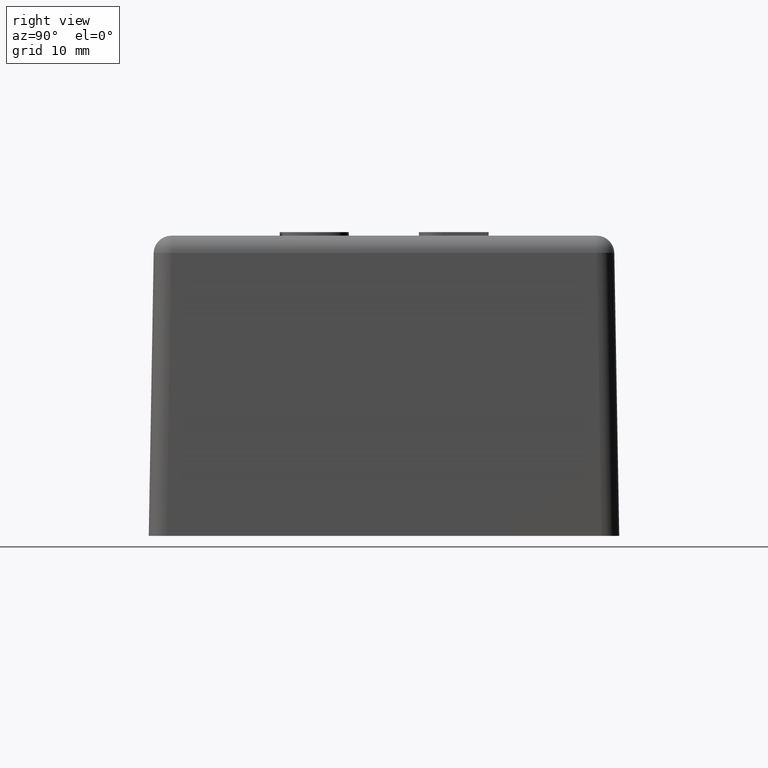
[diagram: clean part render]
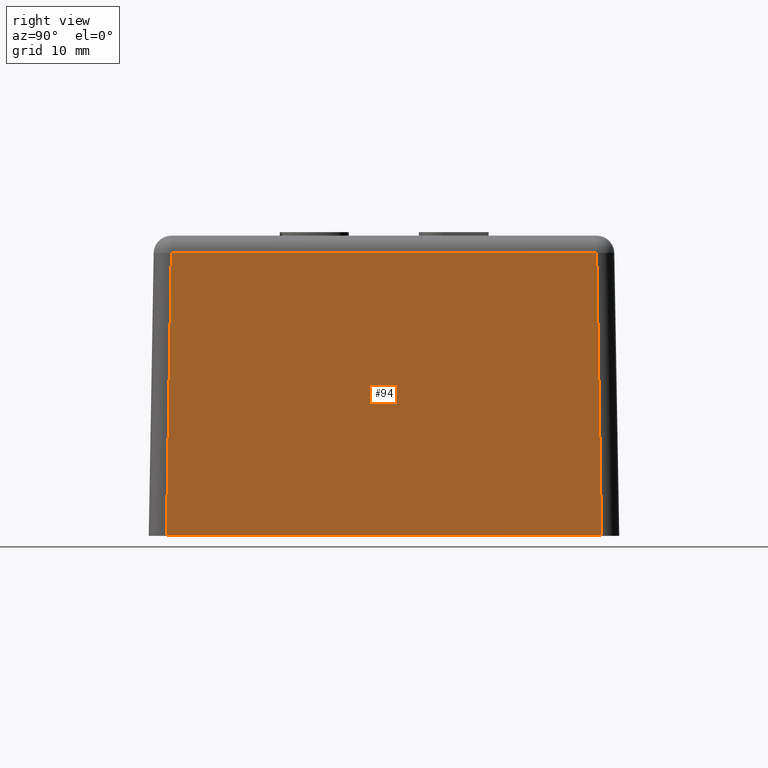
[diagram: same view with one face highlighted and labeled with its STEP entity id]
A machine part, right view. The second image highlights one B-rep face of the part: STEP entity #94.
In plain terms, the highlighted planar face has unit normal (0.9998, 0, 0.0175).
Its self-contained STEP definition (entity closure, byte-faithful):
#94 = ADVANCED_FACE( '', ( #203 ), #204, .T. );
#203 = FACE_OUTER_BOUND( '', #377, .T. );
#204 = PLANE( '', #378 );
#377 = EDGE_LOOP( '', ( #709, #710, #711, #712 ) );
#378 = AXIS2_PLACEMENT_3D( '', #713, #714, #715 );
#709 = ORIENTED_EDGE( '', *, *, #1242, .T. );
#710 = ORIENTED_EDGE( '', *, *, #1241, .T. );
#711 = ORIENTED_EDGE( '', *, *, #1244, .T. );
#712 = ORIENTED_EDGE( '', *, *, #1245, .T. );
#713 = CARTESIAN_POINT( '', ( 33.7329000000000, -33.7329000000000, 0.000000000000000 ) );
#714 = DIRECTION( '', ( 0.999847695156391, 0.000000000000000, 0.0174524064372835 ) );
#715 = DIRECTION( '', ( 0.0174524064372835, 0.000000000000000, -0.999847695156391 ) );
#1241 = EDGE_CURVE( '', #1484, #1487, #1489, .F. );
#1242 = EDGE_CURVE( '', #1490, #1484, #1491, .T. );
#1244 = EDGE_CURVE( '', #1487, #1493, #1494, .F. );
#1245 = EDGE_CURVE( '', #1493, #1490, #1495, .F. );
#1484 = VERTEX_POINT( '', #1989 );
#1487 = VERTEX_POINT( '', #1992 );
#1489 = LINE( '', #1994, #1995 );
#1490 = VERTEX_POINT( '', #1996 );
#1491 = LINE( '', #1997, #1998 );
#1493 = VERTEX_POINT( '', #2000 );
#1494 = LINE( '', #2001, #2002 );
#1495 = LINE( '', #2003, #2004 );
#1989 = CARTESIAN_POINT( '', ( 33.0248492863210, 30.4927349983374, 40.5641982193024 ) );
#1992 = CARTESIAN_POINT( '', ( 33.0248492863210, -30.4927349983374, 40.5641982193024 ) );
#1994 = CARTESIAN_POINT( '', ( 33.0248492863210, -30.4493015291943, 40.5641982193024 ) );
#1995 = VECTOR( '', #2321, 1000.00000000000 );
#1996 = CARTESIAN_POINT( '', ( 33.7329000000000, 31.2007857120164, 0.000000000000000 ) );
#1997 = CARTESIAN_POINT( '', ( 33.7131280988108, 31.1810138108273, 1.13273146049370 ) );
#1998 = VECTOR( '', #2322, 1000.00000000000 );
#2000 = CARTESIAN_POINT( '', ( 33.7329000000000, -31.2007857120164, 0.000000000000000 ) );
#2001 = CARTESIAN_POINT( '', ( 33.7336710129643, -31.2015567249807, -0.0441713031397170 ) );
#2002 = VECTOR( '', #2326, 1000.00000000000 );
#2003 = CARTESIAN_POINT( '', ( 33.7329000000000, -33.7329000000000, 0.000000000000000 ) );
#2004 = VECTOR( '', #2327, 1000.00000000000 );
#2321 = DIRECTION( '', ( 0.000000000000000, 1.00000000000000, 0.000000000000000 ) );
#2322 = DIRECTION( '', ( -0.0174497491606827, -0.0174497491606827, 0.999695459881887 ) );
#2326 = DIRECTION( '', ( -0.0174497491606827, 0.0174497491606827, 0.999695459881887 ) );
#2327 = DIRECTION( '', ( 0.000000000000000, -1.00000000000000, 0.000000000000000 ) );